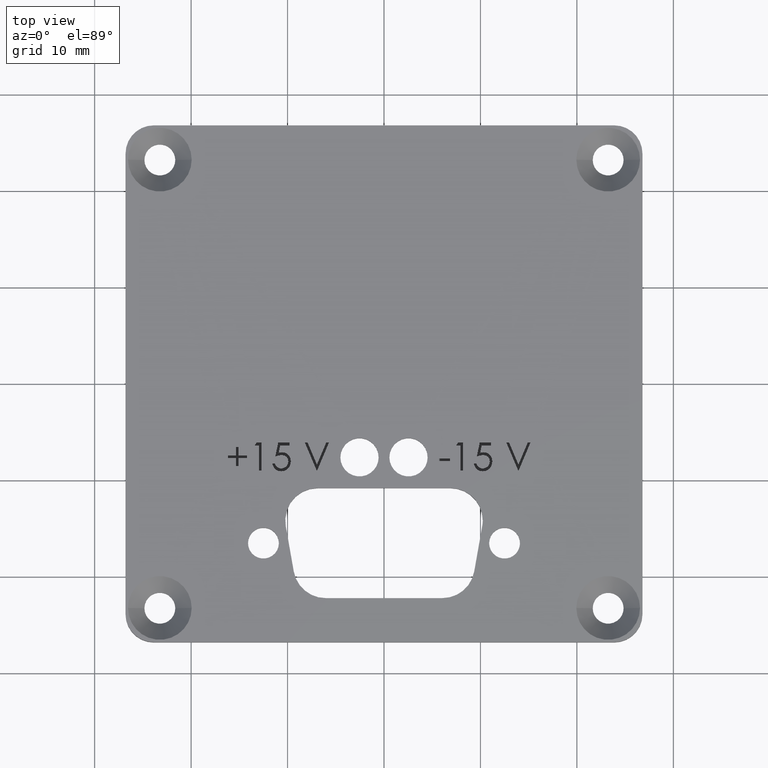
[diagram: clean part render]
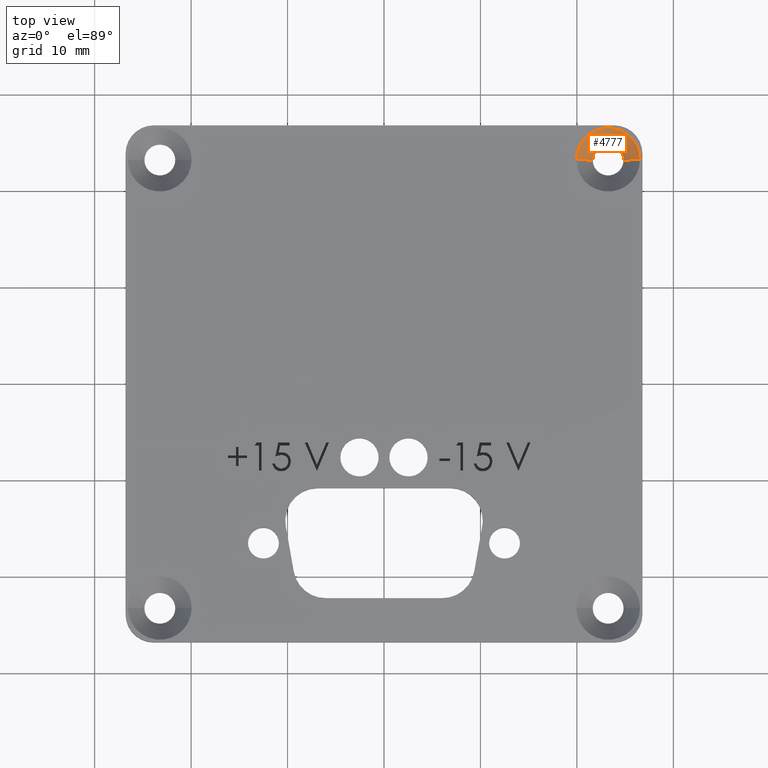
[diagram: same view with one face highlighted and labeled with its STEP entity id]
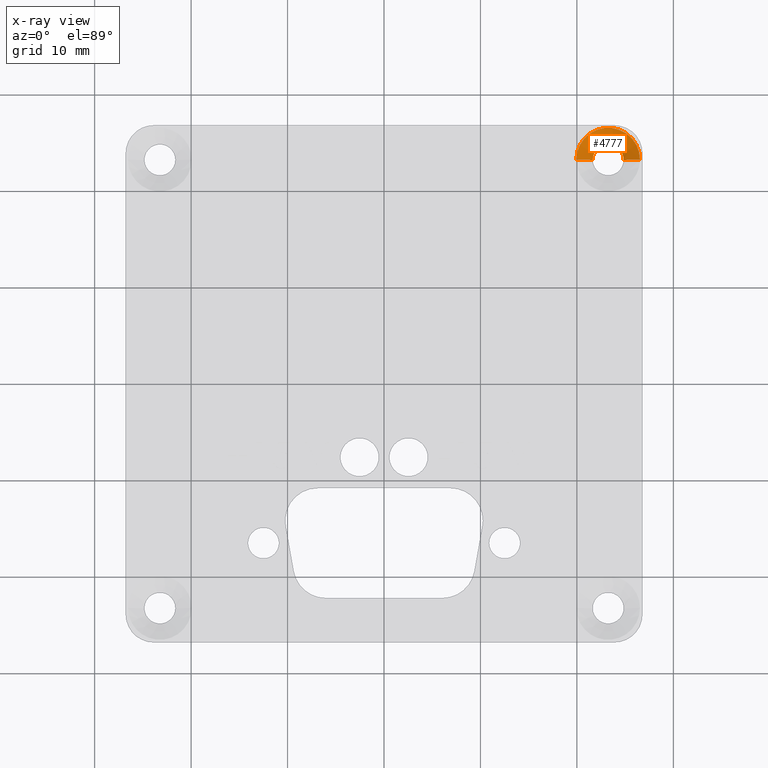
[diagram: x-ray of the same camera — body ghosted, the highlighted face saturated]
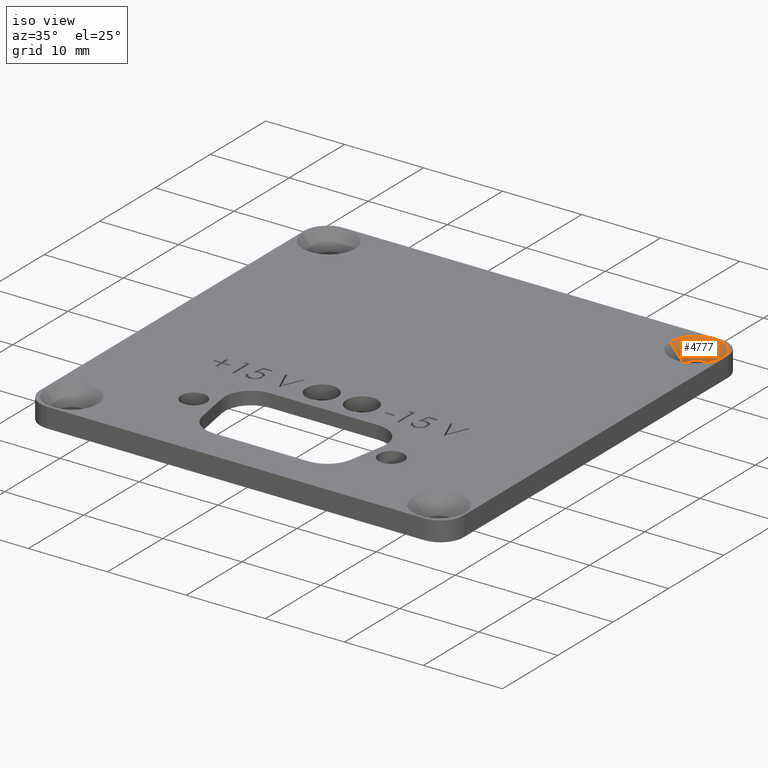
[diagram: same view with one face highlighted and labeled with its STEP entity id]
A machine part, top view. The second image highlights one B-rep face of the part: STEP entity #4777.
The next image is the same camera in x-ray: the body ghosted, the highlighted face saturated — about 0% of this face is hidden behind the body in this view.
A second angle (iso view) of the same face is appended — the face is thin or edge-on in the first view.
In plain terms, the highlighted conical surface has half-angle 41 deg.
Its self-contained STEP definition (entity closure, byte-faithful):
#17 = EDGE_CURVE ( 'NONE', #6028, #3800, #4391, .T. ) ;
#112 = CARTESIAN_POINT ( 'NONE',  ( 0.9149999999999999200, 0.9149999999999999200, 0.04921259842519685300 ) ) ;
#120 = EDGE_LOOP ( 'NONE', ( #5602, #1072, #1002, #3302 ) ) ;
#129 = LINE ( 'NONE', #6297, #6026 ) ;
#276 = CARTESIAN_POINT ( 'NONE',  ( 0.7849999999999999200, 0.9149999999999999200, 0.04921259842519685300 ) ) ;
#289 = CIRCLE ( 'NONE', #4114, 0.06299999999999998700 ) ;
#352 = EDGE_CURVE ( 'NONE', #3800, #1904, #4072, .T. ) ;
#485 = CARTESIAN_POINT ( 'NONE',  ( 0.9779999999999998700, 0.9149999999999999200, -0.02786208485861078900 ) ) ;
#517 = CARTESIAN_POINT ( 'NONE',  ( 0.9149999999999999200, 0.9149999999999999200, 0.04921259842519685300 ) ) ;
#708 = CARTESIAN_POINT ( 'NONE',  ( 1.044999999999999900, 0.9149999999999999200, 0.04921259842519685300 ) ) ;
#710 = AXIS2_PLACEMENT_3D ( 'NONE', #112, #3172, #5036 ) ;
#1002 = ORIENTED_EDGE ( 'NONE', *, *, #17, .T. ) ;
#1072 = ORIENTED_EDGE ( 'NONE', *, *, #4354, .F. ) ;
#1457 = EDGE_CURVE ( 'NONE', #6185, #1904, #129, .T. ) ;
#1904 = VERTEX_POINT ( 'NONE', #276 ) ;
#1931 = DIRECTION ( 'NONE',  ( 0.0000000000000000000, 0.0000000000000000000, 1.000000000000000000 ) ) ;
#2000 = DIRECTION ( 'NONE',  ( 1.000000000000000000, 0.0000000000000000000, 0.0000000000000000000 ) ) ;
#3172 = DIRECTION ( 'NONE',  ( 0.0000000000000000000, 0.0000000000000000000, 1.000000000000000000 ) ) ;
#3302 = ORIENTED_EDGE ( 'NONE', *, *, #352, .T. ) ;
#3418 = CARTESIAN_POINT ( 'NONE',  ( 0.9149999999999999200, 0.9149999999999999200, -0.02786208485861078900 ) ) ;
#3534 = DIRECTION ( 'NONE',  ( -0.6560590289905072800, 8.034405899049453800E-017, 0.7547095802227720100 ) ) ;
#3800 = VERTEX_POINT ( 'NONE', #5581 ) ;
#3835 = FACE_OUTER_BOUND ( 'NONE', #120, .T. ) ;
#4000 = VECTOR ( 'NONE', #5700, 39.37007874015748100 ) ;
#4072 = CIRCLE ( 'NONE', #710, 0.1299999999999999800 ) ;
#4114 = AXIS2_PLACEMENT_3D ( 'NONE', #3418, #1931, #5809 ) ;
#4354 = EDGE_CURVE ( 'NONE', #6028, #6185, #289, .T. ) ;
#4391 = LINE ( 'NONE', #708, #4000 ) ;
#4777 = ADVANCED_FACE ( 'NONE', ( #3835 ), #4995, .F. ) ;
#4943 = DIRECTION ( 'NONE',  ( 0.0000000000000000000, 0.0000000000000000000, 1.000000000000000000 ) ) ;
#4995 = CONICAL_SURFACE ( 'NONE', #6208, 0.1299999999999999800, 0.7155849933176751100 ) ;
#5036 = DIRECTION ( 'NONE',  ( 1.000000000000000000, 0.0000000000000000000, 0.0000000000000000000 ) ) ;
#5499 = CARTESIAN_POINT ( 'NONE',  ( 0.8519999999999999800, 0.9149999999999999200, -0.02786208485861078900 ) ) ;
#5581 = CARTESIAN_POINT ( 'NONE',  ( 1.044999999999999900, 0.9149999999999999200, 0.04921259842519685300 ) ) ;
#5602 = ORIENTED_EDGE ( 'NONE', *, *, #1457, .F. ) ;
#5700 = DIRECTION ( 'NONE',  ( 0.6560590289905072800, 0.0000000000000000000, 0.7547095802227720100 ) ) ;
#5809 = DIRECTION ( 'NONE',  ( 1.000000000000000000, 0.0000000000000000000, 0.0000000000000000000 ) ) ;
#6026 = VECTOR ( 'NONE', #3534, 39.37007874015748100 ) ;
#6028 = VERTEX_POINT ( 'NONE', #485 ) ;
#6185 = VERTEX_POINT ( 'NONE', #5499 ) ;
#6208 = AXIS2_PLACEMENT_3D ( 'NONE', #517, #4943, #2000 ) ;
#6297 = CARTESIAN_POINT ( 'NONE',  ( 0.7849999999999999200, 0.9149999999999999200, 0.04921259842519685300 ) ) ;